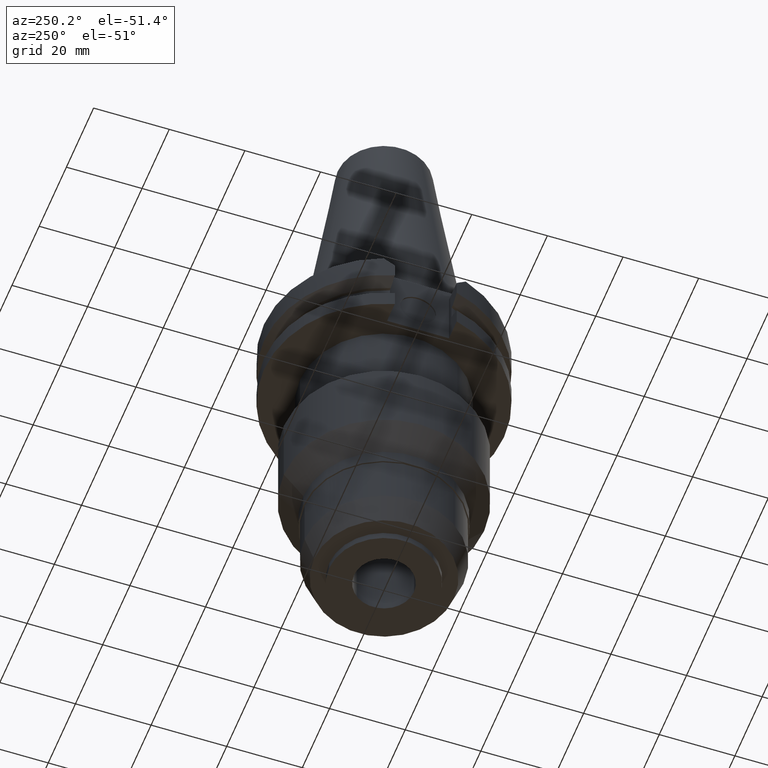
[diagram: clean part render]
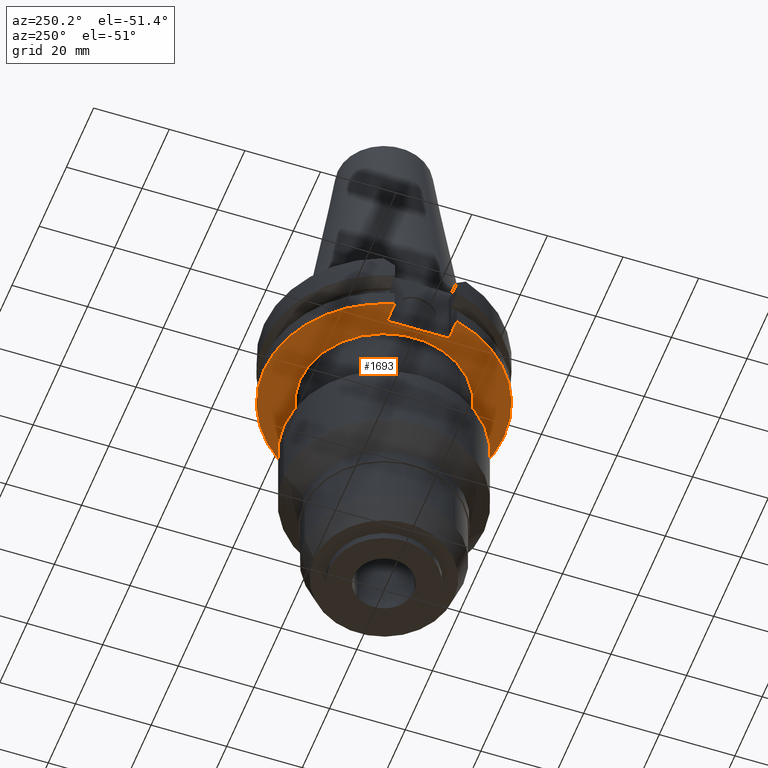
[diagram: same view with one face highlighted and labeled with its STEP entity id]
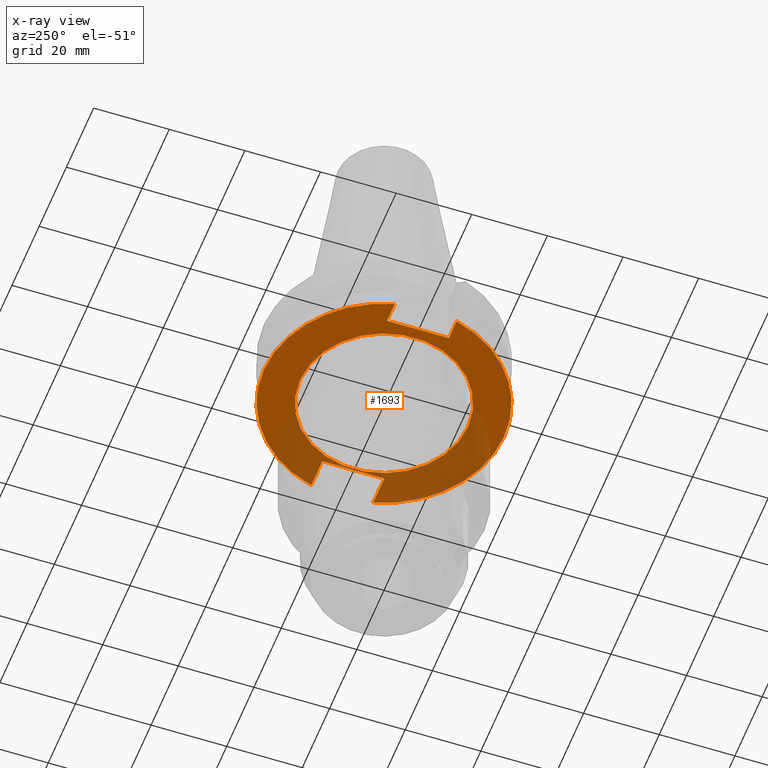
[diagram: x-ray of the same camera — body ghosted, the highlighted face saturated]
A machine part, auxiliary view. The second image highlights one B-rep face of the part: STEP entity #1693.
The next image is the same camera in x-ray: the body ghosted, the highlighted face saturated — about 35% of this face is hidden behind the body in this view.
In plain terms, the highlighted planar face has unit normal (0, 0, -1).
Its self-contained STEP definition (entity closure, byte-faithful):
#163=DIRECTION('',(0.E0,-1.E0,0.E0));
#164=VECTOR('',#163,1.638E1);
#165=CARTESIAN_POINT('',(2.257E1,8.19E0,-1.905E1));
#166=LINE('',#165,#164);
#198=DIRECTION('',(1.E0,0.E0,0.E0));
#199=VECTOR('',#198,8.105501625890E0);
#200=CARTESIAN_POINT('',(2.257E1,8.19E0,-1.905E1));
#201=LINE('',#200,#199);
#205=CARTESIAN_POINT('',(0.E0,2.157919508608E-14,-1.905E1));
#206=DIRECTION('',(0.E0,0.E0,1.E0));
#207=DIRECTION('',(9.661575315241E-1,2.579527559055E-1,0.E0));
#208=AXIS2_PLACEMENT_3D('',#205,#206,#207);
#213=CARTESIAN_POINT('',(0.E0,2.157919508608E-14,-1.905E1));
#214=DIRECTION('',(0.E0,0.E0,1.E0));
#215=DIRECTION('',(0.E0,1.E0,0.E0));
#216=AXIS2_PLACEMENT_3D('',#213,#214,#215);
#221=DIRECTION('',(0.E0,-1.E0,0.E0));
#222=VECTOR('',#221,1.638E1);
#223=CARTESIAN_POINT('',(-2.498E1,8.19E0,-1.905E1));
#224=LINE('',#223,#222);
#228=DIRECTION('',(-1.E0,0.E0,0.E0));
#229=VECTOR('',#228,5.695501625890E0);
#230=CARTESIAN_POINT('',(-2.498E1,-8.19E0,-1.905E1));
#231=LINE('',#230,#229);
#235=CARTESIAN_POINT('',(0.E0,2.157919508608E-14,-1.905E1));
#236=DIRECTION('',(0.E0,0.E0,1.E0));
#237=DIRECTION('',(-9.661575315241E-1,-2.579527559055E-1,0.E0));
#238=AXIS2_PLACEMENT_3D('',#235,#236,#237);
#243=CARTESIAN_POINT('',(0.E0,2.157919508608E-14,-1.905E1));
#244=DIRECTION('',(0.E0,0.E0,1.E0));
#245=DIRECTION('',(0.E0,-1.E0,0.E0));
#246=AXIS2_PLACEMENT_3D('',#243,#244,#245);
#251=CARTESIAN_POINT('',(0.E0,2.157919508608E-14,-1.905E1));
#252=DIRECTION('',(0.E0,0.E0,-1.E0));
#253=DIRECTION('',(0.E0,-1.E0,0.E0));
#254=AXIS2_PLACEMENT_3D('',#251,#252,#253);
#259=CARTESIAN_POINT('',(0.E0,2.157919508608E-14,-1.905E1));
#260=DIRECTION('',(0.E0,0.E0,-1.E0));
#261=DIRECTION('',(0.E0,1.E0,0.E0));
#262=AXIS2_PLACEMENT_3D('',#259,#260,#261);
#365=DIRECTION('',(-1.E0,0.E0,0.E0));
#366=VECTOR('',#365,5.695501625890E0);
#367=CARTESIAN_POINT('',(-2.498E1,8.19E0,-1.905E1));
#368=LINE('',#367,#366);
#605=DIRECTION('',(1.E0,0.E0,0.E0));
#606=VECTOR('',#605,8.105501625890E0);
#607=CARTESIAN_POINT('',(2.257E1,-8.19E0,-1.905E1));
#608=LINE('',#607,#606);
#1398=CARTESIAN_POINT('',(0.E0,2.2225E1,-1.905E1));
#1399=VERTEX_POINT('',#1398);
#1400=CARTESIAN_POINT('',(0.E0,-2.2225E1,-1.905E1));
#1401=VERTEX_POINT('',#1400);
#1402=CARTESIAN_POINT('',(2.257E1,8.19E0,-1.905E1));
#1403=CARTESIAN_POINT('',(2.257E1,-8.19E0,-1.905E1));
#1404=VERTEX_POINT('',#1402);
#1405=VERTEX_POINT('',#1403);
#1406=CARTESIAN_POINT('',(3.067550162589E1,8.19E0,-1.905E1));
#1407=VERTEX_POINT('',#1406);
#1408=CARTESIAN_POINT('',(-1.540277123354E-14,3.175E1,-1.905E1));
#1409=CARTESIAN_POINT('',(-3.067550162589E1,8.19E0,-1.905E1));
#1410=VERTEX_POINT('',#1408);
#1411=VERTEX_POINT('',#1409);
#1412=CARTESIAN_POINT('',(-2.498E1,8.19E0,-1.905E1));
#1413=VERTEX_POINT('',#1412);
#1414=CARTESIAN_POINT('',(-2.498E1,-8.19E0,-1.905E1));
#1415=VERTEX_POINT('',#1414);
#1416=CARTESIAN_POINT('',(-3.067550162589E1,-8.19E0,-1.905E1));
#1417=VERTEX_POINT('',#1416);
#1418=CARTESIAN_POINT('',(1.540277123354E-14,-3.175E1,-1.905E1));
#1419=CARTESIAN_POINT('',(3.067550162589E1,-8.19E0,-1.905E1));
#1420=VERTEX_POINT('',#1418);
#1421=VERTEX_POINT('',#1419);
#1661=CARTESIAN_POINT('',(0.E0,0.E0,-1.905E1));
#1662=DIRECTION('',(0.E0,0.E0,-1.E0));
#1663=DIRECTION('',(0.E0,-1.E0,0.E0));
#1664=AXIS2_PLACEMENT_3D('',#1661,#1662,#1663);
#1665=PLANE('',#1664);
#1666=ORIENTED_EDGE('',*,*,#1647,.F.);
#1668=ORIENTED_EDGE('',*,*,#1667,.T.);
#1670=ORIENTED_EDGE('',*,*,#1669,.T.);
#1672=ORIENTED_EDGE('',*,*,#1671,.T.);
#1674=ORIENTED_EDGE('',*,*,#1673,.F.);
#1676=ORIENTED_EDGE('',*,*,#1675,.T.);
#1678=ORIENTED_EDGE('',*,*,#1677,.T.);
#1680=ORIENTED_EDGE('',*,*,#1679,.T.);
#1682=ORIENTED_EDGE('',*,*,#1681,.T.);
#1684=ORIENTED_EDGE('',*,*,#1683,.F.);
#1685=EDGE_LOOP('',(#1666,#1668,#1670,#1672,#1674,#1676,#1678,#1680,#1682,
#1684));
#1686=FACE_OUTER_BOUND('',#1685,.F.);
#1688=ORIENTED_EDGE('',*,*,#1687,.T.);
#1690=ORIENTED_EDGE('',*,*,#1689,.T.);
#1691=EDGE_LOOP('',(#1688,#1690));
#1692=FACE_BOUND('',#1691,.F.);
#209=CIRCLE('',#208,3.175E1);
#217=CIRCLE('',#216,3.175E1);
#239=CIRCLE('',#238,3.175E1);
#247=CIRCLE('',#246,3.175E1);
#255=CIRCLE('',#254,2.2225E1);
#263=CIRCLE('',#262,2.2225E1);
#1647=EDGE_CURVE('',#1404,#1405,#166,.T.);
#1667=EDGE_CURVE('',#1404,#1407,#201,.T.);
#1669=EDGE_CURVE('',#1407,#1410,#209,.T.);
#1671=EDGE_CURVE('',#1410,#1411,#217,.T.);
#1673=EDGE_CURVE('',#1413,#1411,#368,.T.);
#1675=EDGE_CURVE('',#1413,#1415,#224,.T.);
#1677=EDGE_CURVE('',#1415,#1417,#231,.T.);
#1679=EDGE_CURVE('',#1417,#1420,#239,.T.);
#1681=EDGE_CURVE('',#1420,#1421,#247,.T.);
#1683=EDGE_CURVE('',#1405,#1421,#608,.T.);
#1687=EDGE_CURVE('',#1401,#1399,#255,.T.);
#1689=EDGE_CURVE('',#1399,#1401,#263,.T.);
#1693=ADVANCED_FACE('',(#1686,#1692),#1665,.T.);